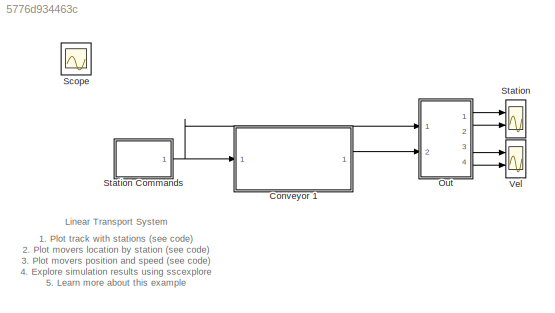
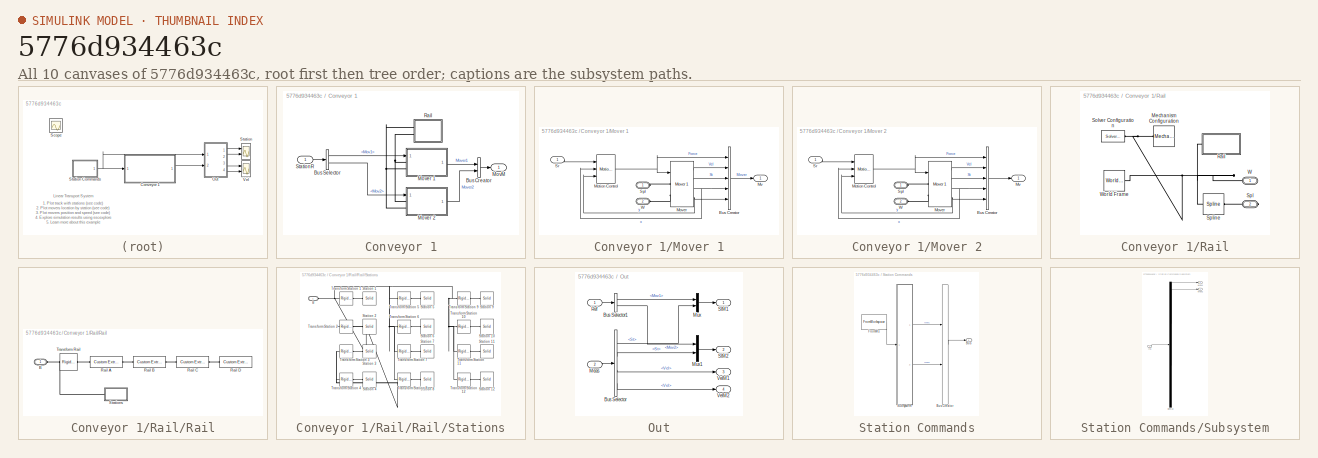
[diagram: thumbnail index - all 10 canvases of the model, root first then tree order]
MODEL slx_5776d934463c
KIND model
CONFIG AbsTol = 1e-3
CONFIG EnableMultiTasking = off
CONFIG FixedStep = auto
CONFIG MaxStep = 1e-2
CONFIG MinStep = auto
CONFIG PreLoadFcn = xts_PARAM
CONFIG RelTol = 1e-3
CONFIG SampleTimeConstraint = Unconstrained
CONFIG Solver = ode45
CONFIG SolverName = ode45
CONFIG StartTime = 0.0
CONFIG StopTime = 10.0
BLOCK [SubSystem] Conveyor 1
  Ports = [1, 1]
  RequestExecContextInheritance = off
  Tag = PublishSubsystem
BLOCK [BusCreator] Conveyor 1/Bus Creator
  DisplayOption = bar
  InheritFromInputs = on
  Inputs = 2
  Ports = [2, 1]
BLOCK [BusSelector] Conveyor 1/Bus Selector
  OutputAsBus = off
  OutputSignals = Mov1,Mov2
  Ports = [1, 2]
BLOCK [Outport] Conveyor 1/MovM
  IconDisplay = Port number
BLOCK [SubSystem] Conveyor 1/Mover 1
  Ports = [1, 1, 0, 0, 0, 2]
  RequestExecContextInheritance = off
  Tag = PublishSubsystem
BLOCK [BusCreator] Conveyor 1/Mover 1/Bus Creator
  DisplayOption = bar
  InheritFromInputs = on
  Inputs = 5
  Ports = [5, 1]
BLOCK [Reference] Conveyor 1/Mover 1/Motion Control  REF=xts_movers_lib/Motion Control  (lib defined in slx_b364a0e70c65, slx_e1cdaa7d04f2)
Mover 1
  Ports = [3, 1]
  SourceBlock = xts_movers_lib/Motion Control\nMover 1
BLOCK [Reference] Conveyor 1/Mover 1/Mover  REF=xts_movers_lib/Mover 1  (lib defined in slx_b364a0e70c65, slx_e1cdaa7d04f2)
  Ports = [1, 4, 0, 0, 0, 2]
  SourceBlock = xts_movers_lib/Mover 1
  Tag = PublishSubsystem
BLOCK [Outport] Conveyor 1/Mover 1/Mv
  IconDisplay = Port number
BLOCK [PMIOPort] Conveyor 1/Mover 1/Spl
  Side = Left
BLOCK [Inport] Conveyor 1/Mover 1/Sr
  IconDisplay = Port number
BLOCK [PMIOPort] Conveyor 1/Mover 1/W
  Port = 2
  Side = Left
BLOCK [SubSystem] Conveyor 1/Mover 2
  Ports = [1, 1, 0, 0, 0, 2]
  RequestExecContextInheritance = off
BLOCK [BusCreator] Conveyor 1/Mover 2/Bus Creator
  DisplayOption = bar
  InheritFromInputs = on
  Inputs = 5
  Ports = [5, 1]
BLOCK [Reference] Conveyor 1/Mover 2/Motion Control  REF=xts_movers_lib/Motion Control  (lib defined in slx_b364a0e70c65, slx_e1cdaa7d04f2)
Mover 1
  Ports = [3, 1]
  SourceBlock = xts_movers_lib/Motion Control\nMover 1
BLOCK [Reference] Conveyor 1/Mover 2/Mover  REF=xts_movers_lib/Mover 1  (lib defined in slx_b364a0e70c65, slx_e1cdaa7d04f2)
  Ports = [1, 4, 0, 0, 0, 2]
  SourceBlock = xts_movers_lib/Mover 1
BLOCK [Outport] Conveyor 1/Mover 2/Mv
  IconDisplay = Port number
BLOCK [PMIOPort] Conveyor 1/Mover 2/Spl
  Side = Left
BLOCK [Inport] Conveyor 1/Mover 2/Sr
  IconDisplay = Port number
BLOCK [PMIOPort] Conveyor 1/Mover 2/W
  Port = 2
  Side = Left
BLOCK [SubSystem] Conveyor 1/Rail
  Ports = [0, 0, 0, 0, 0, 0, 2]
  RequestExecContextInheritance = off
BLOCK [Reference] Conveyor 1/Rail/Mechanism Configuration  REF=sm_lib/Utilities/Mechanism
Configuration
  Ports = [0, 0, 0, 0, 0, 0, 1]
  SourceBlock = sm_lib/Utilities/Mechanism\nConfiguration
  SourceProductBaseCode = MS
  SourceProductName = Simscape Multibody
  SourceType = Mechanism\nConfiguration
BLOCK [SubSystem] Conveyor 1/Rail/Rail
  Ports = [0, 0, 0, 0, 0, 1]
  RequestExecContextInheritance = off
  Tag = PublishSubsystem
BLOCK [PMIOPort] Conveyor 1/Rail/Rail/B
  Side = Left
BLOCK [Reference] Conveyor 1/Rail/Rail/Rail A  REF=Multibody_Parts_Lib/Extrusions/Custom Extrusion
  Ports = [0, 0, 0, 0, 0, 1, 1]
  SourceBlock = Multibody_Parts_Lib/Extrusions/Custom Extrusion
  SourceProductName = Simscape Multibody Parts Library
  SourceType = Box Tube
BLOCK [Reference] Conveyor 1/Rail/Rail/Rail B  REF=Multibody_Parts_Lib/Extrusions/Custom Extrusion Curve
  Ports = [0, 0, 0, 0, 0, 1, 1]
  SourceBlock = Multibody_Parts_Lib/Extrusions/Custom Extrusion Curve
  SourceProductName = Simscape Multibody Parts Library
  SourceType = Box Tube with Curve
BLOCK [Reference] Conveyor 1/Rail/Rail/Rail C  REF=Multibody_Parts_Lib/Extrusions/Custom Extrusion
  Ports = [0, 0, 0, 0, 0, 1, 1]
  SourceBlock = Multibody_Parts_Lib/Extrusions/Custom Extrusion
  SourceProductName = Simscape Multibody Parts Library
  SourceType = Box Tube
BLOCK [Reference] Conveyor 1/Rail/Rail/Rail D  REF=Multibody_Parts_Lib/Extrusions/Custom Extrusion Curve
  Ports = [0, 0, 0, 0, 0, 1, 1]
  SourceBlock = Multibody_Parts_Lib/Extrusions/Custom Extrusion Curve
  SourceProductName = Simscape Multibody Parts Library
  SourceType = Box Tube with Curve
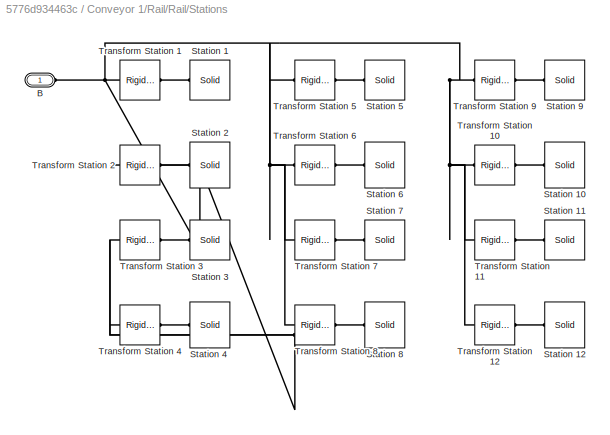
BLOCK [SubSystem] Conveyor 1/Rail/Rail/Stations
  Ports = [0, 0, 0, 0, 0, 1]
  RequestExecContextInheritance = off
BLOCK [PMIOPort] Conveyor 1/Rail/Rail/Stations/B
  Side = Left
BLOCK [Reference] Conveyor 1/Rail/Rail/Stations/Station 1  REF=sm_lib/Body Elements/Solid
  Ports = [0, 0, 0, 0, 0, 0, 1]
  SourceBlock = sm_lib/Body Elements/Solid
  SourceProductBaseCode = MS
  SourceProductName = Simscape Multibody
  SourceType = Solid
BLOCK [Reference] Conveyor 1/Rail/Rail/Stations/Station 10  REF=sm_lib/Body Elements/Solid
  Ports = [0, 0, 0, 0, 0, 0, 1]
  SourceBlock = sm_lib/Body Elements/Solid
  SourceProductBaseCode = MS
  SourceProductName = Simscape Multibody
  SourceType = Solid
BLOCK [Reference] Conveyor 1/Rail/Rail/Stations/Station 11  REF=sm_lib/Body Elements/Solid
  Ports = [0, 0, 0, 0, 0, 0, 1]
  SourceBlock = sm_lib/Body Elements/Solid
  SourceProductBaseCode = MS
  SourceProductName = Simscape Multibody
  SourceType = Solid
BLOCK [Reference] Conveyor 1/Rail/Rail/Stations/Station 12  REF=sm_lib/Body Elements/Solid
  Ports = [0, 0, 0, 0, 0, 0, 1]
  SourceBlock = sm_lib/Body Elements/Solid
  SourceProductBaseCode = MS
  SourceProductName = Simscape Multibody
  SourceType = Solid
BLOCK [Reference] Conveyor 1/Rail/Rail/Stations/Station 2  REF=sm_lib/Body Elements/Solid
  Ports = [0, 0, 0, 0, 0, 0, 1]
  SourceBlock = sm_lib/Body Elements/Solid
  SourceProductBaseCode = MS
  SourceProductName = Simscape Multibody
  SourceType = Solid
BLOCK [Reference] Conveyor 1/Rail/Rail/Stations/Station 3  REF=sm_lib/Body Elements/Solid
  Ports = [0, 0, 0, 0, 0, 0, 1]
  SourceBlock = sm_lib/Body Elements/Solid
  SourceProductBaseCode = MS
  SourceProductName = Simscape Multibody
  SourceType = Solid
BLOCK [Reference] Conveyor 1/Rail/Rail/Stations/Station 4  REF=sm_lib/Body Elements/Solid
  Ports = [0, 0, 0, 0, 0, 0, 1]
  SourceBlock = sm_lib/Body Elements/Solid
  SourceProductBaseCode = MS
  SourceProductName = Simscape Multibody
  SourceType = Solid
BLOCK [Reference] Conveyor 1/Rail/Rail/Stations/Station 5  REF=sm_lib/Body Elements/Solid
  Ports = [0, 0, 0, 0, 0, 0, 1]
  SourceBlock = sm_lib/Body Elements/Solid
  SourceProductBaseCode = MS
  SourceProductName = Simscape Multibody
  SourceType = Solid
BLOCK [Reference] Conveyor 1/Rail/Rail/Stations/Station 6  REF=sm_lib/Body Elements/Solid
  Ports = [0, 0, 0, 0, 0, 0, 1]
  SourceBlock = sm_lib/Body Elements/Solid
  SourceProductBaseCode = MS
  SourceProductName = Simscape Multibody
  SourceType = Solid
BLOCK [Reference] Conveyor 1/Rail/Rail/Stations/Station 7  REF=sm_lib/Body Elements/Solid
  Ports = [0, 0, 0, 0, 0, 0, 1]
  SourceBlock = sm_lib/Body Elements/Solid
  SourceProductBaseCode = MS
  SourceProductName = Simscape Multibody
  SourceType = Solid
BLOCK [Reference] Conveyor 1/Rail/Rail/Stations/Station 8  REF=sm_lib/Body Elements/Solid
  Ports = [0, 0, 0, 0, 0, 0, 1]
  SourceBlock = sm_lib/Body Elements/Solid
  SourceProductBaseCode = MS
  SourceProductName = Simscape Multibody
  SourceType = Solid
BLOCK [Reference] Conveyor 1/Rail/Rail/Stations/Station 9  REF=sm_lib/Body Elements/Solid
  Ports = [0, 0, 0, 0, 0, 0, 1]
  SourceBlock = sm_lib/Body Elements/Solid
  SourceProductBaseCode = MS
  SourceProductName = Simscape Multibody
  SourceType = Solid
BLOCK [Reference] Conveyor 1/Rail/Rail/Stations/Transform Station 1  REF=sm_lib/Frames and
Transforms/Rigid
Transform
  Ports = [0, 0, 0, 0, 0, 1, 1]
  SourceBlock = sm_lib/Frames and\nTransforms/Rigid\nTransform
  SourceProductBaseCode = MS
  SourceProductName = Simscape Multibody
  SourceType = Rigid\nTransform
BLOCK [Reference] Conveyor 1/Rail/Rail/Stations/Transform Station 10  REF=sm_lib/Frames and
Transforms/Rigid
Transform
  Ports = [0, 0, 0, 0, 0, 1, 1]
  SourceBlock = sm_lib/Frames and\nTransforms/Rigid\nTransform
  SourceProductBaseCode = MS
  SourceProductName = Simscape Multibody
  SourceType = Rigid\nTransform
BLOCK [Reference] Conveyor 1/Rail/Rail/Stations/Transform Station 11  REF=sm_lib/Frames and
Transforms/Rigid
Transform
  Ports = [0, 0, 0, 0, 0, 1, 1]
  SourceBlock = sm_lib/Frames and\nTransforms/Rigid\nTransform
  SourceProductBaseCode = MS
  SourceProductName = Simscape Multibody
  SourceType = Rigid\nTransform
BLOCK [Reference] Conveyor 1/Rail/Rail/Stations/Transform Station 12  REF=sm_lib/Frames and
Transforms/Rigid
Transform
  Ports = [0, 0, 0, 0, 0, 1, 1]
  SourceBlock = sm_lib/Frames and\nTransforms/Rigid\nTransform
  SourceProductBaseCode = MS
  SourceProductName = Simscape Multibody
  SourceType = Rigid\nTransform
BLOCK [Reference] Conveyor 1/Rail/Rail/Stations/Transform Station 2  REF=sm_lib/Frames and
Transforms/Rigid
Transform
  Ports = [0, 0, 0, 0, 0, 1, 1]
  SourceBlock = sm_lib/Frames and\nTransforms/Rigid\nTransform
  SourceProductBaseCode = MS
  SourceProductName = Simscape Multibody
  SourceType = Rigid\nTransform
BLOCK [Reference] Conveyor 1/Rail/Rail/Stations/Transform Station 3  REF=sm_lib/Frames and
Transforms/Rigid
Transform
  Ports = [0, 0, 0, 0, 0, 1, 1]
  SourceBlock = sm_lib/Frames and\nTransforms/Rigid\nTransform
  SourceProductBaseCode = MS
  SourceProductName = Simscape Multibody
  SourceType = Rigid\nTransform
BLOCK [Reference] Conveyor 1/Rail/Rail/Stations/Transform Station 4  REF=sm_lib/Frames and
Transforms/Rigid
Transform
  Ports = [0, 0, 0, 0, 0, 1, 1]
  SourceBlock = sm_lib/Frames and\nTransforms/Rigid\nTransform
  SourceProductBaseCode = MS
  SourceProductName = Simscape Multibody
  SourceType = Rigid\nTransform
BLOCK [Reference] Conveyor 1/Rail/Rail/Stations/Transform Station 5  REF=sm_lib/Frames and
Transforms/Rigid
Transform
  Ports = [0, 0, 0, 0, 0, 1, 1]
  SourceBlock = sm_lib/Frames and\nTransforms/Rigid\nTransform
  SourceProductBaseCode = MS
  SourceProductName = Simscape Multibody
  SourceType = Rigid\nTransform
BLOCK [Reference] Conveyor 1/Rail/Rail/Stations/Transform Station 6  REF=sm_lib/Frames and
Transforms/Rigid
Transform
  Ports = [0, 0, 0, 0, 0, 1, 1]
  SourceBlock = sm_lib/Frames and\nTransforms/Rigid\nTransform
  SourceProductBaseCode = MS
  SourceProductName = Simscape Multibody
  SourceType = Rigid\nTransform
BLOCK [Reference] Conveyor 1/Rail/Rail/Stations/Transform Station 7  REF=sm_lib/Frames and
Transforms/Rigid
Transform
  Ports = [0, 0, 0, 0, 0, 1, 1]
  SourceBlock = sm_lib/Frames and\nTransforms/Rigid\nTransform
  SourceProductBaseCode = MS
  SourceProductName = Simscape Multibody
  SourceType = Rigid\nTransform
BLOCK [Reference] Conveyor 1/Rail/Rail/Stations/Transform Station 8  REF=sm_lib/Frames and
Transforms/Rigid
Transform
  Ports = [0, 0, 0, 0, 0, 1, 1]
  SourceBlock = sm_lib/Frames and\nTransforms/Rigid\nTransform
  SourceProductBaseCode = MS
  SourceProductName = Simscape Multibody
  SourceType = Rigid\nTransform
BLOCK [Reference] Conveyor 1/Rail/Rail/Stations/Transform Station 9  REF=sm_lib/Frames and
Transforms/Rigid
Transform
  Ports = [0, 0, 0, 0, 0, 1, 1]
  SourceBlock = sm_lib/Frames and\nTransforms/Rigid\nTransform
  SourceProductBaseCode = MS
  SourceProductName = Simscape Multibody
  SourceType = Rigid\nTransform
BLOCK [Reference] Conveyor 1/Rail/Rail/Transform Rail  REF=sm_lib/Frames and
Transforms/Rigid
Transform
  Ports = [0, 0, 0, 0, 0, 1, 1]
  SourceBlock = sm_lib/Frames and\nTransforms/Rigid\nTransform
  SourceProductBaseCode = MS
  SourceProductName = Simscape Multibody
  SourceType = Rigid\nTransform
BLOCK [Reference] Conveyor 1/Rail/Solver Configuration  REF=nesl_utility/Solver
Configuration
  Ports = [0, 0, 0, 0, 0, 0, 1]
  SourceBlock = nesl_utility/Solver\nConfiguration
  SourceProductBaseCode = SS
  SourceProductName = Simscape
  SourceType = Solver\nConfiguration
BLOCK [PMIOPort] Conveyor 1/Rail/Spl
  Port = 2
  Side = Right
BLOCK [Reference] Conveyor 1/Rail/Spline  REF=sm_lib/Curves and Surfaces/Spline
  Ports = [0, 0, 0, 0, 0, 1, 1]
  SourceBlock = sm_lib/Curves and Surfaces/Spline
  SourceProductBaseCode = MS
  SourceProductName = Simscape Multibody
  SourceType = Spline
BLOCK [PMIOPort] Conveyor 1/Rail/W
  Side = Right
BLOCK [Reference] Conveyor 1/Rail/World Frame  REF=sm_lib/Frames and
Transforms/World Frame
  Ports = [0, 0, 0, 0, 0, 0, 1]
  SourceBlock = sm_lib/Frames and\nTransforms/World Frame
  SourceProductBaseCode = MS
  SourceProductName = Simscape Multibody
  SourceType = World Frame
BLOCK [Inport] Conveyor 1/StationR
  IconDisplay = Port number
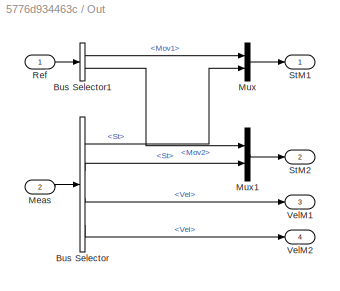
BLOCK [SubSystem] Out
  Ports = [2, 4]
  RequestExecContextInheritance = off
BLOCK [BusSelector] Out/Bus Selector
  OutputAsBus = off
  OutputSignals = Mover1.St,Mover2.St,Mover1.Vel,Mover2.Vel
  Ports = [1, 4]
BLOCK [BusSelector] Out/Bus Selector1
  OutputAsBus = off
  OutputSignals = Mov1,Mov2
  Ports = [1, 2]
BLOCK [Inport] Out/Meas
  IconDisplay = Port number
  Port = 2
BLOCK [Mux] Out/Mux
  DisplayOption = bar
  Inputs = 2
  Ports = [2, 1]
BLOCK [Mux] Out/Mux1
  DisplayOption = bar
  Inputs = 2
  Ports = [2, 1]
BLOCK [Inport] Out/Ref
  IconDisplay = Port number
BLOCK [Outport] Out/StM1
  IconDisplay = Port number
BLOCK [Outport] Out/StM2
  IconDisplay = Port number
  Port = 2
BLOCK [Outport] Out/VelM1
  IconDisplay = Port number
  Port = 3
BLOCK [Outport] Out/VelM2
  IconDisplay = Port number
  Port = 4
BLOCK [Scope] Scope
  Floating = off
  IOType = viewer
  NumInputPorts = 1
  Ports = []
  ScopeSpecificationString = Simulink.scopes.TimeScopeBlockCfg('CurrentConfiguration', extmgr.ConfigurationSet(extmgr.Configuration('Core','General UI',true),extmgr.Configuration('Core','Source UI',true),extmgr.Configuration('Sources','WiredSimulink',true,'DataLoggingVariableName','ScopeData1'),extmgr.Configuration('Visuals','Time Domain',true,'SerializedDisplays',{struct('MinYLimReal','-6.25','MaxYLimReal','56.25','YLabelRea...<+1387ch>
BLOCK [Scope] Station
  Floating = off
  NumInputPorts = 2
  Ports = [2]
  ScopeSpecificationString = Simulink.scopes.TimeScopeBlockCfg('CurrentConfiguration', extmgr.ConfigurationSet(extmgr.Configuration('Core','General UI',true),extmgr.Configuration('Core','Source UI',true),extmgr.Configuration('Sources','WiredSimulink',true,'DataLoggingVariableName','ScopeData3'),extmgr.Configuration('Visuals','Time Domain',true,'SerializedDisplays',{struct('MinYLimReal','-1.5','MaxYLimReal','13.5','YLabelReal'...<+2106ch>
BLOCK [SubSystem] Station Commands
  ClipboardFcn = sigbuilder_block('clipboard');
  CloseFcn = sigbuilder_block('close');
  ContinueFcn = sigbuilder_block('continue');
  CopyFcn = sigbuilder_block('copy');
  DeleteFcn = sigbuilder_block('delete');
  LoadFcn = sigbuilder_block('load');
  MaskHideContents = on
  ModelCloseFcn = sigbuilder_block('modelClose');
  NameChangeFcn = sigbuilder_block('namechange');
  OpenFcn = sigbuilder_block('open',[437.6 199.2 550.4 400 ]);
  PauseFcn = sigbuilder_block('pause');
  Ports = [0, 1]
  PreSaveFcn = sigbuilder_block('preSave');
  RequestExecContextInheritance = off
  StartFcn = sigbuilder_block('start');
  StopFcn = sigbuilder_block('stop');
  Tag = STV Subsys
BLOCK [Outport] Station Commands/Bus
  IconDisplay = Port number
BLOCK [BusCreator] Station Commands/Bus Creator
  InheritFromInputs = on
  Inputs = 2
  Ports = [2, 1]
  Tag = Bus Creator
BLOCK [FromWorkspace] Station Commands/FromWs
  SampleTime = 0
  Tag = STV FromWs
  VariableName = tuvar
  ZeroCross = on
BLOCK [SubSystem] Station Commands/Subsystem
  Ports = [1, 2]
  RequestExecContextInheritance = off
BLOCK [Demux] Station Commands/Subsystem/Demux
  Outputs = 2
  Ports = [1, 2]
  Tag = STV Demux
BLOCK [Inport] Station Commands/Subsystem/In1
  IconDisplay = Port number
BLOCK [Outport] Station Commands/Subsystem/Mov1
  IconDisplay = Port number
  Tag = STV Outport
BLOCK [Outport] Station Commands/Subsystem/Mov2
  IconDisplay = Port number
  Port = 2
  Tag = STV Outport
BLOCK [Scope] Vel
  Floating = off
  NumInputPorts = 2
  Ports = [2]
  ScopeSpecificationString = Simulink.scopes.TimeScopeBlockCfg('CurrentConfiguration', extmgr.ConfigurationSet(extmgr.Configuration('Core','General UI',true),extmgr.Configuration('Core','Source UI',true),extmgr.Configuration('Sources','WiredSimulink',true,'DataLoggingVariableName','ScopeData1'),extmgr.Configuration('Visuals','Time Domain',true,'SerializedDisplays',{struct('MinYLimReal','-0.12686','MaxYLimReal','1.14176','YLab...<+1411ch>
ANNOTATION (root): 1. Plot track with stations ( see code ) 2. Plot movers location by station ( see code ) 3. Plot movers position and speed ( see code ) 4. Explore simulation results using sscexplore 5. Learn more about this example
ANNOTATION (root): Linear Transport System
LINE Conveyor 1/Bus Creator:1 -> Conveyor 1/MovM:1
LINE Conveyor 1/Bus Selector:1 -> Conveyor 1/Mover 1:1
LINE Conveyor 1/Bus Selector:2 -> Conveyor 1/Mover 2:1
LINE Conveyor 1/Mover 1/Bus Creator:1 -> Conveyor 1/Mover 1/Mv:1
NET Conveyor 1/Mover 1/Motion Control:1 -> Conveyor 1/Mover 1/Bus Creator:1, Conveyor 1/Mover 1/Mover:1
LINE Conveyor 1/Mover 1/Mover:1 -> Conveyor 1/Mover 1/Bus Creator:2
LINE Conveyor 1/Mover 1/Mover:2 -> Conveyor 1/Mover 1/Bus Creator:3
NET Conveyor 1/Mover 1/Mover:3 -> Conveyor 1/Mover 1/Bus Creator:4, Conveyor 1/Mover 1/Motion Control:2
NET Conveyor 1/Mover 1/Mover:4 -> Conveyor 1/Mover 1/Bus Creator:5, Conveyor 1/Mover 1/Motion Control:3
LINE Conveyor 1/Mover 1/Sr:1 -> Conveyor 1/Mover 1/Motion Control:1
LINE Conveyor 1/Mover 1:1 -> Conveyor 1/Bus Creator:1
LINE Conveyor 1/Mover 2/Bus Creator:1 -> Conveyor 1/Mover 2/Mv:1
NET Conveyor 1/Mover 2/Motion Control:1 -> Conveyor 1/Mover 2/Bus Creator:1, Conveyor 1/Mover 2/Mover:1
LINE Conveyor 1/Mover 2/Mover:1 -> Conveyor 1/Mover 2/Bus Creator:2
LINE Conveyor 1/Mover 2/Mover:2 -> Conveyor 1/Mover 2/Bus Creator:3
NET Conveyor 1/Mover 2/Mover:3 -> Conveyor 1/Mover 2/Bus Creator:4, Conveyor 1/Mover 2/Motion Control:2
NET Conveyor 1/Mover 2/Mover:4 -> Conveyor 1/Mover 2/Bus Creator:5, Conveyor 1/Mover 2/Motion Control:3
LINE Conveyor 1/Mover 2/Sr:1 -> Conveyor 1/Mover 2/Motion Control:1
LINE Conveyor 1/Mover 2:1 -> Conveyor 1/Bus Creator:2
LINE Conveyor 1/StationR:1 -> Conveyor 1/Bus Selector:1
LINE Conveyor 1:1 -> Out:2
LINE Out/Bus Selector1:1 -> Out/Mux:1
LINE Out/Bus Selector1:2 -> Out/Mux1:1
LINE Out/Bus Selector:1 -> Out/Mux:2
LINE Out/Bus Selector:2 -> Out/Mux1:2
LINE Out/Bus Selector:3 -> Out/VelM1:1
LINE Out/Bus Selector:4 -> Out/VelM2:1
LINE Out/Meas:1 -> Out/Bus Selector:1
LINE Out/Mux1:1 -> Out/StM2:1
LINE Out/Mux:1 -> Out/StM1:1
LINE Out/Ref:1 -> Out/Bus Selector1:1
LINE Out:1 -> Station:1
LINE Out:2 -> Station:2
LINE Out:3 -> Vel:1
LINE Out:4 -> Vel:2
NET Station Commands:1 -> Conveyor 1:1, Out:1
PLINE Conveyor 1/Mover 1/Mover:LConn1 -- Conveyor 1/Mover 1/Spl:RConn1
PLINE Conveyor 1/Mover 1/Mover:LConn2 -- Conveyor 1/Mover 1/W:RConn1
PNET net1: Conveyor 1/Mover 1:LConn1 -- Conveyor 1/Mover 2:LConn1 -- Conveyor 1/Rail:RConn2
PNET net2: Conveyor 1/Mover 1:LConn2 -- Conveyor 1/Mover 2:LConn2 -- Conveyor 1/Rail:RConn1
PLINE Conveyor 1/Mover 2/Mover:LConn1 -- Conveyor 1/Mover 2/Spl:RConn1
PLINE Conveyor 1/Mover 2/Mover:LConn2 -- Conveyor 1/Mover 2/W:RConn1
PNET net3: Conveyor 1/Rail/Mechanism Configuration:RConn1 -- Conveyor 1/Rail/Rail:LConn1 -- Conveyor 1/Rail/Solver Configuration:RConn1 -- Conveyor 1/Rail/Spline:LConn1 -- Conveyor 1/Rail/W:RConn1 -- Conveyor 1/Rail/World Frame:RConn1
PNET net4: Conveyor 1/Rail/Rail/B:RConn1 -- Conveyor 1/Rail/Rail/Stations:LConn1 -- Conveyor 1/Rail/Rail/Transform Rail:LConn1
PLINE Conveyor 1/Rail/Rail/Rail A:LConn1 -- Conveyor 1/Rail/Rail/Transform Rail:RConn1
PLINE Conveyor 1/Rail/Rail/Rail A:RConn1 -- Conveyor 1/Rail/Rail/Rail B:LConn1
PLINE Conveyor 1/Rail/Rail/Rail B:RConn1 -- Conveyor 1/Rail/Rail/Rail C:LConn1
PLINE Conveyor 1/Rail/Rail/Rail C:RConn1 -- Conveyor 1/Rail/Rail/Rail D:LConn1
PNET net5: Conveyor 1/Rail/Rail/Stations/B:RConn1 -- Conveyor 1/Rail/Rail/Stations/Transform Station 10:LConn1 -- Conveyor 1/Rail/Rail/Stations/Transform Station 11:LConn1 -- Conveyor 1/Rail/Rail/Stations/Transform Station 12:LConn1 -- Conveyor 1/Rail/Rail/Stations/Transform Station 1:LConn1 -- Conveyor 1/Rail/Rail/Stations/Transform Station 2:LConn1 -- Conveyor 1/Rail/Rail/Stations/Transform Station 3:LConn1 -- Conveyor 1/Rail/Rail/Stations/Transform Station 4:LConn1 -- Conveyor 1/Rail/Rail/Stations/Transform Station 5:LConn1 -- Conveyor 1/Rail/Rail/Stations/Transform Station 6:LConn1 -- Conveyor 1/Rail/Rail/Stations/Transform Station 7:LConn1 -- Conveyor 1/Rail/Rail/Stations/Transform Station 8:LConn1 -- Conveyor 1/Rail/Rail/Stations/Transform Station 9:LConn1
PLINE Conveyor 1/Rail/Rail/Stations/Station 10:RConn1 -- Conveyor 1/Rail/Rail/Stations/Transform Station 10:RConn1
PLINE Conveyor 1/Rail/Rail/Stations/Station 11:RConn1 -- Conveyor 1/Rail/Rail/Stations/Transform Station 11:RConn1
PLINE Conveyor 1/Rail/Rail/Stations/Station 12:RConn1 -- Conveyor 1/Rail/Rail/Stations/Transform Station 12:RConn1
PLINE Conveyor 1/Rail/Rail/Stations/Station 1:RConn1 -- Conveyor 1/Rail/Rail/Stations/Transform Station 1:RConn1
PLINE Conveyor 1/Rail/Rail/Stations/Station 2:RConn1 -- Conveyor 1/Rail/Rail/Stations/Transform Station 2:RConn1
PLINE Conveyor 1/Rail/Rail/Stations/Station 3:RConn1 -- Conveyor 1/Rail/Rail/Stations/Transform Station 3:RConn1
PLINE Conveyor 1/Rail/Rail/Stations/Station 4:RConn1 -- Conveyor 1/Rail/Rail/Stations/Transform Station 4:RConn1
PLINE Conveyor 1/Rail/Rail/Stations/Station 5:RConn1 -- Conveyor 1/Rail/Rail/Stations/Transform Station 5:RConn1
PLINE Conveyor 1/Rail/Rail/Stations/Station 6:RConn1 -- Conveyor 1/Rail/Rail/Stations/Transform Station 6:RConn1
PLINE Conveyor 1/Rail/Rail/Stations/Station 7:RConn1 -- Conveyor 1/Rail/Rail/Stations/Transform Station 7:RConn1
PLINE Conveyor 1/Rail/Rail/Stations/Station 8:RConn1 -- Conveyor 1/Rail/Rail/Stations/Transform Station 8:RConn1
PLINE Conveyor 1/Rail/Rail/Stations/Station 9:RConn1 -- Conveyor 1/Rail/Rail/Stations/Transform Station 9:RConn1
PLINE Conveyor 1/Rail/Spl:RConn1 -- Conveyor 1/Rail/Spline:RConn1
note: NET lines group one-source signal fan-out (src -> all destinations, sorted); 1:1 wires keep LINE; PNET lines group multi-terminal physical nets as a canonical sorted terminal list (undirected conserving connections); 2-terminal nets keep the pairwise PLINE form
